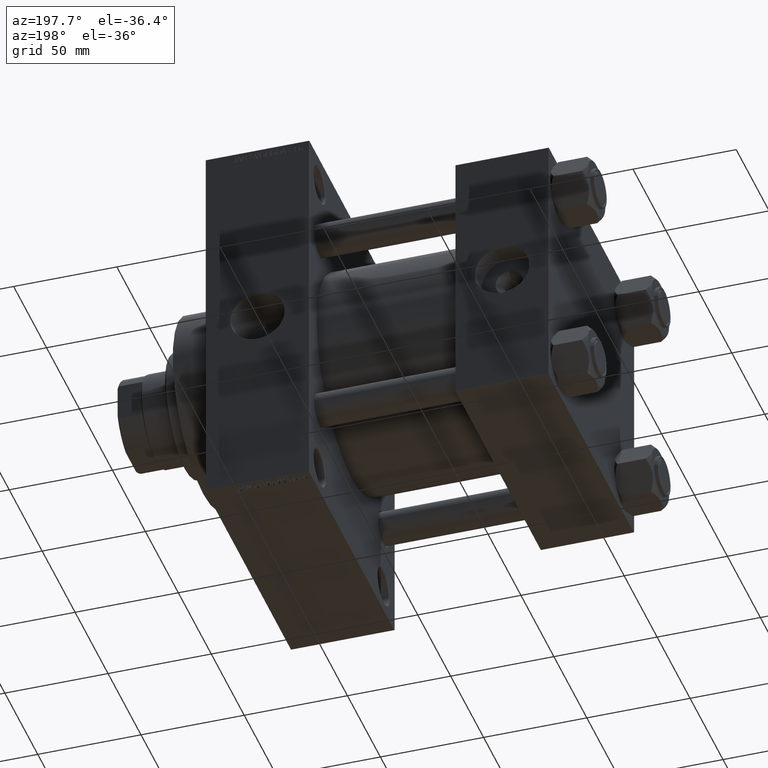
[diagram: clean part render]
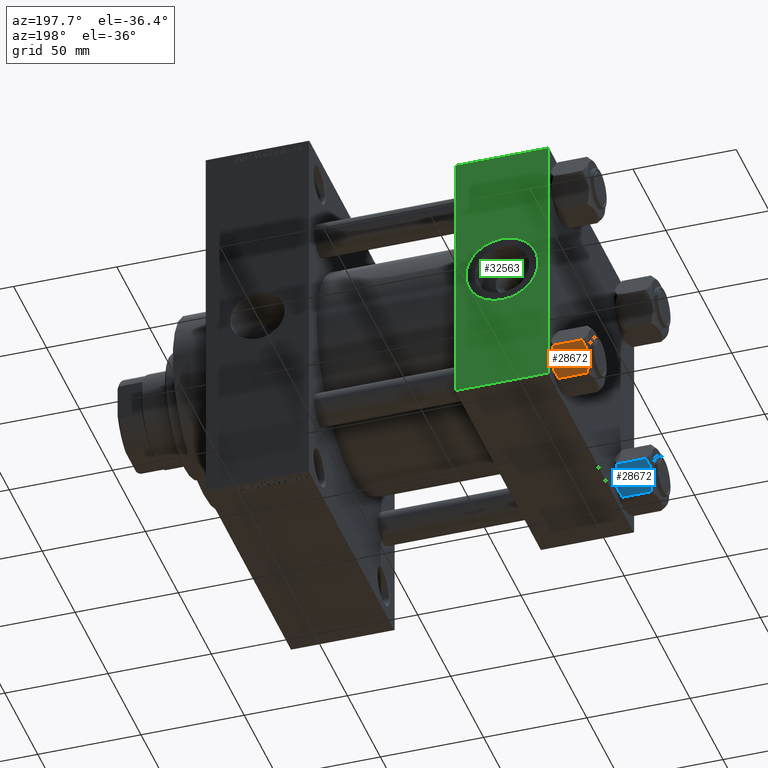
[diagram: same view with three faces highlighted in distinct colors, each labeled with its STEP entity id]
A machine part, auxiliary view with three faces highlighted in distinct colors.
Their STEP definitions:

[orange] entity #28672 — the highlighted planar face has unit normal (0, -0.866, 0.5).
#848 = ORIENTED_EDGE ( 'NONE', *, *, #49794, .F. ) ;
#1236 = EDGE_CURVE ( 'NONE', #22027, #23578, #36455, .T. ) ;
#1491 = CARTESIAN_POINT ( 'NONE',  ( -9.439480280627259745, -10.70497417113492311, -0.7317196846281081024 ) ) ;
#1660 = CARTESIAN_POINT ( 'NONE',  ( -7.809999999999999609, -13.52731680711293727, -18.00000000000000000 ) ) ;
#1671 = EDGE_CURVE ( 'NONE', #8282, #4310, #31316, .T. ) ;
#1756 = VERTEX_POINT ( 'NONE', #43913 ) ;
#2426 = CARTESIAN_POINT ( 'NONE',  ( -14.92760668674625002, -1.199260397376427090, -1.411989271640064825 ) ) ;
#3441 = CARTESIAN_POINT ( 'NONE',  ( -11.71500000000000874, -6.763658403556459753, -18.00000000000000000 ) ) ;
#4134 = CARTESIAN_POINT ( 'NONE',  ( -7.809999999999999609, -13.52731680711293727, -1.999999999999998224 ) ) ;
#4155 = DIRECTION ( 'NONE',  ( 0.4999999999999994449, -0.8660254037844390407, 0.000000000000000000 ) ) ;
#4188 = CARTESIAN_POINT ( 'NONE',  ( -10.06459418565412456, -9.622245127110602425, -17.61639331488794014 ) ) ;
#4310 = VERTEX_POINT ( 'NONE', #4772 ) ;
#4772 = CARTESIAN_POINT ( 'NONE',  ( -15.52647173767732980, -0.1619957022864788043, -2.000000000000000000 ) ) ;
#4846 = CARTESIAN_POINT ( 'NONE',  ( -7.809999999999999609, -13.52731680711293727, -16.00000000000000000 ) ) ;
#5135 = DIRECTION ( 'NONE',  ( 0.4999999999999994449, -0.8660254037844390407, 0.000000000000000000 ) ) ;
#5382 = CARTESIAN_POINT ( 'NONE',  ( -14.30591678195076533, -2.276058899034876681, -17.05261278537718894 ) ) ;
#5631 = CARTESIAN_POINT ( 'NONE',  ( -13.99051971937274530, -2.822342635977989289, -17.26828031537188934 ) ) ;
#5703 = CARTESIAN_POINT ( 'NONE',  ( -11.71500000000000874, -6.763658403556459753, 0.000000000000000000 ) ) ;
#5788 = DIRECTION ( 'NONE',  ( -0.4999999999999993894, 0.8660254037844389297, 0.000000000000000000 ) ) ;
#5951 = CARTESIAN_POINT ( 'NONE',  ( -14.31545111198821552, -2.259544954993873311, -0.9142282604026915616 ) ) ;
#6255 = ORIENTED_EDGE ( 'NONE', *, *, #1671, .F. ) ;
#6485 = DIRECTION ( 'NONE',  ( -0.4999999999999994449, 0.8660254037844390407, 0.000000000000000000 ) ) ;
#7713 = CARTESIAN_POINT ( 'NONE',  ( -11.04378428799595468, -7.926238119585997666, -17.94910618364700028 ) ) ;
#8277 = EDGE_CURVE ( 'NONE', #26955, #33557, #28159, .T. ) ;
#8282 = VERTEX_POINT ( 'NONE', #32291 ) ;
#8441 = CARTESIAN_POINT ( 'NONE',  ( -11.38181071908714692, -7.340759166634859945, -18.00000000000001421 ) ) ;
#8693 = VERTEX_POINT ( 'NONE', #19389 ) ;
#9031 = CARTESIAN_POINT ( 'NONE',  ( -11.05297796109637787, -7.910314210667872103, 9.086969458144130882E-15 ) ) ;
#9966 = CARTESIAN_POINT ( 'NONE',  ( -12.38621571200405391, -5.601078687526916511, -0.05089381635300645190 ) ) ;
#10110 = EDGE_CURVE ( 'NONE', #24591, #26955, #42234, .T. ) ;
#10743 = LINE ( 'NONE', #41481, #20843 ) ;
#10975 = VECTOR ( 'NONE', #4155, 999.9999999999998863 ) ;
#12924 = CARTESIAN_POINT ( 'NONE',  ( -15.61999999999999567, 8.023367828467702033E-15, -18.00000000000000000 ) ) ;
#13318 = B_SPLINE_CURVE_WITH_KNOTS ( 'NONE', 3,
 ( #40200, #2426, #5951, #44223, #36419, #9966, #17023, #5703 ),
 .UNSPECIFIED., .F., .F.,
 ( 4, 2, 2, 4 ),
 ( 4.472842641982724416E-07, 0.003945636373369324802, 0.005918230917921887824, 0.007890825462474451713 ),
 .UNSPECIFIED. ) ;
#14792 = CARTESIAN_POINT ( 'NONE',  ( -7.903528262322674358, -13.36532110482643354, -2.000000000000000000 ) ) ;
#15273 = CARTESIAN_POINT ( 'NONE',  ( -7.903528262322674358, -13.36532110482643354, -16.00000000000000000 ) ) ;
#15577 = CARTESIAN_POINT ( 'NONE',  ( -15.52647173767732980, -0.1619957022864788043, -16.00000000000000000 ) ) ;
#17023 = CARTESIAN_POINT ( 'NONE',  ( -12.04818928091285635, -6.186557640478051567, 9.103910117089220044E-15 ) ) ;
#18754 = LINE ( 'NONE', #12924, #39751 ) ;
#19389 = CARTESIAN_POINT ( 'NONE',  ( -15.61999999999999567, 8.023367828467702033E-15, -16.00000000000000000 ) ) ;
#20609 = CARTESIAN_POINT ( 'NONE',  ( -9.124083218049237942, -11.25125790807803838, -0.9473872146228101698 ) ) ;
#20667 = EDGE_CURVE ( 'NONE', #8693, #8282, #18754, .T. ) ;
#20843 = VECTOR ( 'NONE', #6485, 999.9999999999998863 ) ;
#21961 = ORIENTED_EDGE ( 'NONE', *, *, #34067, .F. ) ;
#22027 = VERTEX_POINT ( 'NONE', #22409 ) ;
#22409 = CARTESIAN_POINT ( 'NONE',  ( -11.71500000000000874, -6.763658403556459753, 0.000000000000000000 ) ) ;
#23578 = VERTEX_POINT ( 'NONE', #36993 ) ;
#24373 = CARTESIAN_POINT ( 'NONE',  ( -10.40215497533437805, -9.037572688741340343, -0.1971866459924474513 ) ) ;
#24591 = VERTEX_POINT ( 'NONE', #28607 ) ;
#25400 = PLANE ( 'NONE',  #45235 ) ;
#26955 = VERTEX_POINT ( 'NONE', #45933 ) ;
#27083 = CARTESIAN_POINT ( 'NONE',  ( -9.114548888011787753, -11.26777185211903820, -17.08577173959730899 ) ) ;
#27885 = VECTOR ( 'NONE', #43959, 1000.000000000000000 ) ;
#28159 = B_SPLINE_CURVE_WITH_KNOTS ( 'NONE', 3,
 ( #42180, #47416, #48159, #5631, #5382, #32546, #39623, #47658 ),
 .UNSPECIFIED., .F., .F.,
 ( 4, 2, 2, 4 ),
 ( 0.007890825462474436100, 0.01181022244528555712, 0.01376992093669111850, 0.01572961942809667987 ),
 .UNSPECIFIED. ) ;
#28607 = CARTESIAN_POINT ( 'NONE',  ( -7.903528262322674358, -13.36532110482643354, -16.00000000000000000 ) ) ;
#28672 = ADVANCED_FACE ( 'NONE', ( #40286 ), #25400, .F. ) ;
#28926 = DIRECTION ( 'NONE',  ( 0.8660254037844390407, 0.4999999999999994449, 0.000000000000000000 ) ) ;
#28927 = ORIENTED_EDGE ( 'NONE', *, *, #20667, .F. ) ;
#30905 = VECTOR ( 'NONE', #47871, 999.9999999999998863 ) ;
#31316 = LINE ( 'NONE', #39132, #10975 ) ;
#32291 = CARTESIAN_POINT ( 'NONE',  ( -15.61999999999999567, 8.023367828467702033E-15, -1.999999999999998224 ) ) ;
#32546 = CARTESIAN_POINT ( 'NONE',  ( -14.92394044919338825, -1.205610507090610461, -16.56553707812500065 ) ) ;
#32957 = CARTESIAN_POINT ( 'NONE',  ( -7.809999999999999609, -13.52731680711293727, -18.00000000000000000 ) ) ;
#33257 = VECTOR ( 'NONE', #5135, 999.9999999999998863 ) ;
#33557 = VERTEX_POINT ( 'NONE', #15577 ) ;
#33848 = ORIENTED_EDGE ( 'NONE', *, *, #8277, .F. ) ;
#34067 = EDGE_CURVE ( 'NONE', #33557, #8693, #47622, .T. ) ;
#34421 = CARTESIAN_POINT ( 'NONE',  ( -7.809999999999999609, -13.52731680711293727, -1.999999999999998224 ) ) ;
#34669 = LINE ( 'NONE', #34421, #33257 ) ;
#35143 = CARTESIAN_POINT ( 'NONE',  ( -8.502393313253753249, -12.32805640973648664, -16.58801072835993651 ) ) ;
#35983 = CARTESIAN_POINT ( 'NONE',  ( -8.506059550806618574, -12.32170630002230816, -1.434462921875002461 ) ) ;
#36419 = CARTESIAN_POINT ( 'NONE',  ( -13.04337073483128329, -4.462852799541069615, -0.2430846701012900901 ) ) ;
#36455 = B_SPLINE_CURVE_WITH_KNOTS ( 'NONE', 3,
 ( #43535, #9031, #24373, #1491, #20609, #35983, #41505, #14792 ),
 .UNSPECIFIED., .F., .F.,
 ( 4, 2, 2, 4 ),
 ( 0.007890825462474451713, 0.01181022244528557794, 0.01376992093669113758, 0.01572961942809669722 ),
 .UNSPECIFIED. ) ;
#36993 = CARTESIAN_POINT ( 'NONE',  ( -7.903528262322674358, -13.36532110482643354, -2.000000000000000000 ) ) ;
#38384 = EDGE_CURVE ( 'NONE', #1756, #43653, #47712, .T. ) ;
#39132 = CARTESIAN_POINT ( 'NONE',  ( -7.809999999999999609, -13.52731680711293727, -1.999999999999998224 ) ) ;
#39623 = CARTESIAN_POINT ( 'NONE',  ( -15.22736220980736199, -0.6800686015852018818, -16.29368822085855584 ) ) ;
#39751 = VECTOR ( 'NONE', #47424, 1000.000000000000000 ) ;
#40200 = CARTESIAN_POINT ( 'NONE',  ( -15.52647173767732980, -0.1619957022864788043, -2.000000000000000000 ) ) ;
#40286 = FACE_OUTER_BOUND ( 'NONE', #49705, .T. ) ;
#40333 = ORIENTED_EDGE ( 'NONE', *, *, #10110, .F. ) ;
#41481 = CARTESIAN_POINT ( 'NONE',  ( -7.809999999999999609, -13.52731680711293727, -16.00000000000000000 ) ) ;
#41505 = CARTESIAN_POINT ( 'NONE',  ( -8.202637790192643052, -12.84724820552771085, -1.706311779141444829 ) ) ;
#41559 = EDGE_CURVE ( 'NONE', #4310, #22027, #13318, .T. ) ;
#42180 = CARTESIAN_POINT ( 'NONE',  ( -11.71500000000000874, -6.763658403556459753, -18.00000000000000000 ) ) ;
#42234 = B_SPLINE_CURVE_WITH_KNOTS ( 'NONE', 3,
 ( #15273, #35143, #27083, #4188, #42953, #7713, #8441, #3441 ),
 .UNSPECIFIED., .F., .F.,
 ( 4, 2, 2, 4 ),
 ( 4.472842641813524291E-07, 0.003945636373369312659, 0.005918230917921874813, 0.007890825462474436100 ),
 .UNSPECIFIED. ) ;
#42953 = CARTESIAN_POINT ( 'NONE',  ( -10.38662926516872353, -9.064464007571846338, -17.75691532989871746 ) ) ;
#43535 = CARTESIAN_POINT ( 'NONE',  ( -11.71500000000000874, -6.763658403556459753, 0.000000000000000000 ) ) ;
#43653 = VERTEX_POINT ( 'NONE', #4134 ) ;
#43913 = CARTESIAN_POINT ( 'NONE',  ( -7.809999999999999609, -13.52731680711293727, -16.00000000000000000 ) ) ;
#43959 = DIRECTION ( 'NONE',  ( -0.000000000000000000, -0.000000000000000000, 1.000000000000000000 ) ) ;
#44223 = CARTESIAN_POINT ( 'NONE',  ( -13.36540581434588226, -3.905071680002305534, -0.3836066851120543686 ) ) ;
#44884 = ORIENTED_EDGE ( 'NONE', *, *, #48018, .F. ) ;
#45235 = AXIS2_PLACEMENT_3D ( 'NONE', #32957, #28926, #5788 ) ;
#45933 = CARTESIAN_POINT ( 'NONE',  ( -11.71500000000000874, -6.763658403556459753, -18.00000000000000000 ) ) ;
#46674 = ORIENTED_EDGE ( 'NONE', *, *, #38384, .T. ) ;
#47416 = CARTESIAN_POINT ( 'NONE',  ( -12.37702203890362540, -5.617002596445037632, -18.00000000000000711 ) ) ;
#47424 = DIRECTION ( 'NONE',  ( -0.000000000000000000, -0.000000000000000000, 1.000000000000000000 ) ) ;
#47622 = LINE ( 'NONE', #4846, #30905 ) ;
#47658 = CARTESIAN_POINT ( 'NONE',  ( -15.52647173767732980, -0.1619957022864788043, -16.00000000000000000 ) ) ;
#47712 = LINE ( 'NONE', #1660, #27885 ) ;
#47871 = DIRECTION ( 'NONE',  ( -0.4999999999999994449, 0.8660254037844390407, 0.000000000000000000 ) ) ;
#48018 = EDGE_CURVE ( 'NONE', #1756, #24591, #10743, .T. ) ;
#48159 = CARTESIAN_POINT ( 'NONE',  ( -13.02784502466562699, -4.489744118371570281, -17.80281335400755083 ) ) ;
#48719 = ORIENTED_EDGE ( 'NONE', *, *, #1236, .F. ) ;
#49699 = ORIENTED_EDGE ( 'NONE', *, *, #41559, .F. ) ;
#49705 = EDGE_LOOP ( 'NONE', ( #44884, #46674, #848, #48719, #49699, #6255, #28927, #21961, #33848, #40333 ) ) ;
#49794 = EDGE_CURVE ( 'NONE', #23578, #43653, #34669, .T. ) ;

[blue] entity #28672 — the highlighted planar face has unit normal (0, -0.866, 0.5).
#848 = ORIENTED_EDGE ( 'NONE', *, *, #49794, .F. ) ;
#1236 = EDGE_CURVE ( 'NONE', #22027, #23578, #36455, .T. ) ;
#1491 = CARTESIAN_POINT ( 'NONE',  ( -9.439480280627259745, -10.70497417113492311, -0.7317196846281081024 ) ) ;
#1660 = CARTESIAN_POINT ( 'NONE',  ( -7.809999999999999609, -13.52731680711293727, -18.00000000000000000 ) ) ;
#1671 = EDGE_CURVE ( 'NONE', #8282, #4310, #31316, .T. ) ;
#1756 = VERTEX_POINT ( 'NONE', #43913 ) ;
#2426 = CARTESIAN_POINT ( 'NONE',  ( -14.92760668674625002, -1.199260397376427090, -1.411989271640064825 ) ) ;
#3441 = CARTESIAN_POINT ( 'NONE',  ( -11.71500000000000874, -6.763658403556459753, -18.00000000000000000 ) ) ;
#4134 = CARTESIAN_POINT ( 'NONE',  ( -7.809999999999999609, -13.52731680711293727, -1.999999999999998224 ) ) ;
#4155 = DIRECTION ( 'NONE',  ( 0.4999999999999994449, -0.8660254037844390407, 0.000000000000000000 ) ) ;
#4188 = CARTESIAN_POINT ( 'NONE',  ( -10.06459418565412456, -9.622245127110602425, -17.61639331488794014 ) ) ;
#4310 = VERTEX_POINT ( 'NONE', #4772 ) ;
#4772 = CARTESIAN_POINT ( 'NONE',  ( -15.52647173767732980, -0.1619957022864788043, -2.000000000000000000 ) ) ;
#4846 = CARTESIAN_POINT ( 'NONE',  ( -7.809999999999999609, -13.52731680711293727, -16.00000000000000000 ) ) ;
#5135 = DIRECTION ( 'NONE',  ( 0.4999999999999994449, -0.8660254037844390407, 0.000000000000000000 ) ) ;
#5382 = CARTESIAN_POINT ( 'NONE',  ( -14.30591678195076533, -2.276058899034876681, -17.05261278537718894 ) ) ;
#5631 = CARTESIAN_POINT ( 'NONE',  ( -13.99051971937274530, -2.822342635977989289, -17.26828031537188934 ) ) ;
#5703 = CARTESIAN_POINT ( 'NONE',  ( -11.71500000000000874, -6.763658403556459753, 0.000000000000000000 ) ) ;
#5788 = DIRECTION ( 'NONE',  ( -0.4999999999999993894, 0.8660254037844389297, 0.000000000000000000 ) ) ;
#5951 = CARTESIAN_POINT ( 'NONE',  ( -14.31545111198821552, -2.259544954993873311, -0.9142282604026915616 ) ) ;
#6255 = ORIENTED_EDGE ( 'NONE', *, *, #1671, .F. ) ;
#6485 = DIRECTION ( 'NONE',  ( -0.4999999999999994449, 0.8660254037844390407, 0.000000000000000000 ) ) ;
#7713 = CARTESIAN_POINT ( 'NONE',  ( -11.04378428799595468, -7.926238119585997666, -17.94910618364700028 ) ) ;
#8277 = EDGE_CURVE ( 'NONE', #26955, #33557, #28159, .T. ) ;
#8282 = VERTEX_POINT ( 'NONE', #32291 ) ;
#8441 = CARTESIAN_POINT ( 'NONE',  ( -11.38181071908714692, -7.340759166634859945, -18.00000000000001421 ) ) ;
#8693 = VERTEX_POINT ( 'NONE', #19389 ) ;
#9031 = CARTESIAN_POINT ( 'NONE',  ( -11.05297796109637787, -7.910314210667872103, 9.086969458144130882E-15 ) ) ;
#9966 = CARTESIAN_POINT ( 'NONE',  ( -12.38621571200405391, -5.601078687526916511, -0.05089381635300645190 ) ) ;
#10110 = EDGE_CURVE ( 'NONE', #24591, #26955, #42234, .T. ) ;
#10743 = LINE ( 'NONE', #41481, #20843 ) ;
#10975 = VECTOR ( 'NONE', #4155, 999.9999999999998863 ) ;
#12924 = CARTESIAN_POINT ( 'NONE',  ( -15.61999999999999567, 8.023367828467702033E-15, -18.00000000000000000 ) ) ;
#13318 = B_SPLINE_CURVE_WITH_KNOTS ( 'NONE', 3,
 ( #40200, #2426, #5951, #44223, #36419, #9966, #17023, #5703 ),
 .UNSPECIFIED., .F., .F.,
 ( 4, 2, 2, 4 ),
 ( 4.472842641982724416E-07, 0.003945636373369324802, 0.005918230917921887824, 0.007890825462474451713 ),
 .UNSPECIFIED. ) ;
#14792 = CARTESIAN_POINT ( 'NONE',  ( -7.903528262322674358, -13.36532110482643354, -2.000000000000000000 ) ) ;
#15273 = CARTESIAN_POINT ( 'NONE',  ( -7.903528262322674358, -13.36532110482643354, -16.00000000000000000 ) ) ;
#15577 = CARTESIAN_POINT ( 'NONE',  ( -15.52647173767732980, -0.1619957022864788043, -16.00000000000000000 ) ) ;
#17023 = CARTESIAN_POINT ( 'NONE',  ( -12.04818928091285635, -6.186557640478051567, 9.103910117089220044E-15 ) ) ;
#18754 = LINE ( 'NONE', #12924, #39751 ) ;
#19389 = CARTESIAN_POINT ( 'NONE',  ( -15.61999999999999567, 8.023367828467702033E-15, -16.00000000000000000 ) ) ;
#20609 = CARTESIAN_POINT ( 'NONE',  ( -9.124083218049237942, -11.25125790807803838, -0.9473872146228101698 ) ) ;
#20667 = EDGE_CURVE ( 'NONE', #8693, #8282, #18754, .T. ) ;
#20843 = VECTOR ( 'NONE', #6485, 999.9999999999998863 ) ;
#21961 = ORIENTED_EDGE ( 'NONE', *, *, #34067, .F. ) ;
#22027 = VERTEX_POINT ( 'NONE', #22409 ) ;
#22409 = CARTESIAN_POINT ( 'NONE',  ( -11.71500000000000874, -6.763658403556459753, 0.000000000000000000 ) ) ;
#23578 = VERTEX_POINT ( 'NONE', #36993 ) ;
#24373 = CARTESIAN_POINT ( 'NONE',  ( -10.40215497533437805, -9.037572688741340343, -0.1971866459924474513 ) ) ;
#24591 = VERTEX_POINT ( 'NONE', #28607 ) ;
#25400 = PLANE ( 'NONE',  #45235 ) ;
#26955 = VERTEX_POINT ( 'NONE', #45933 ) ;
#27083 = CARTESIAN_POINT ( 'NONE',  ( -9.114548888011787753, -11.26777185211903820, -17.08577173959730899 ) ) ;
#27885 = VECTOR ( 'NONE', #43959, 1000.000000000000000 ) ;
#28159 = B_SPLINE_CURVE_WITH_KNOTS ( 'NONE', 3,
 ( #42180, #47416, #48159, #5631, #5382, #32546, #39623, #47658 ),
 .UNSPECIFIED., .F., .F.,
 ( 4, 2, 2, 4 ),
 ( 0.007890825462474436100, 0.01181022244528555712, 0.01376992093669111850, 0.01572961942809667987 ),
 .UNSPECIFIED. ) ;
#28607 = CARTESIAN_POINT ( 'NONE',  ( -7.903528262322674358, -13.36532110482643354, -16.00000000000000000 ) ) ;
#28672 = ADVANCED_FACE ( 'NONE', ( #40286 ), #25400, .F. ) ;
#28926 = DIRECTION ( 'NONE',  ( 0.8660254037844390407, 0.4999999999999994449, 0.000000000000000000 ) ) ;
#28927 = ORIENTED_EDGE ( 'NONE', *, *, #20667, .F. ) ;
#30905 = VECTOR ( 'NONE', #47871, 999.9999999999998863 ) ;
#31316 = LINE ( 'NONE', #39132, #10975 ) ;
#32291 = CARTESIAN_POINT ( 'NONE',  ( -15.61999999999999567, 8.023367828467702033E-15, -1.999999999999998224 ) ) ;
#32546 = CARTESIAN_POINT ( 'NONE',  ( -14.92394044919338825, -1.205610507090610461, -16.56553707812500065 ) ) ;
#32957 = CARTESIAN_POINT ( 'NONE',  ( -7.809999999999999609, -13.52731680711293727, -18.00000000000000000 ) ) ;
#33257 = VECTOR ( 'NONE', #5135, 999.9999999999998863 ) ;
#33557 = VERTEX_POINT ( 'NONE', #15577 ) ;
#33848 = ORIENTED_EDGE ( 'NONE', *, *, #8277, .F. ) ;
#34067 = EDGE_CURVE ( 'NONE', #33557, #8693, #47622, .T. ) ;
#34421 = CARTESIAN_POINT ( 'NONE',  ( -7.809999999999999609, -13.52731680711293727, -1.999999999999998224 ) ) ;
#34669 = LINE ( 'NONE', #34421, #33257 ) ;
#35143 = CARTESIAN_POINT ( 'NONE',  ( -8.502393313253753249, -12.32805640973648664, -16.58801072835993651 ) ) ;
#35983 = CARTESIAN_POINT ( 'NONE',  ( -8.506059550806618574, -12.32170630002230816, -1.434462921875002461 ) ) ;
#36419 = CARTESIAN_POINT ( 'NONE',  ( -13.04337073483128329, -4.462852799541069615, -0.2430846701012900901 ) ) ;
#36455 = B_SPLINE_CURVE_WITH_KNOTS ( 'NONE', 3,
 ( #43535, #9031, #24373, #1491, #20609, #35983, #41505, #14792 ),
 .UNSPECIFIED., .F., .F.,
 ( 4, 2, 2, 4 ),
 ( 0.007890825462474451713, 0.01181022244528557794, 0.01376992093669113758, 0.01572961942809669722 ),
 .UNSPECIFIED. ) ;
#36993 = CARTESIAN_POINT ( 'NONE',  ( -7.903528262322674358, -13.36532110482643354, -2.000000000000000000 ) ) ;
#38384 = EDGE_CURVE ( 'NONE', #1756, #43653, #47712, .T. ) ;
#39132 = CARTESIAN_POINT ( 'NONE',  ( -7.809999999999999609, -13.52731680711293727, -1.999999999999998224 ) ) ;
#39623 = CARTESIAN_POINT ( 'NONE',  ( -15.22736220980736199, -0.6800686015852018818, -16.29368822085855584 ) ) ;
#39751 = VECTOR ( 'NONE', #47424, 1000.000000000000000 ) ;
#40200 = CARTESIAN_POINT ( 'NONE',  ( -15.52647173767732980, -0.1619957022864788043, -2.000000000000000000 ) ) ;
#40286 = FACE_OUTER_BOUND ( 'NONE', #49705, .T. ) ;
#40333 = ORIENTED_EDGE ( 'NONE', *, *, #10110, .F. ) ;
#41481 = CARTESIAN_POINT ( 'NONE',  ( -7.809999999999999609, -13.52731680711293727, -16.00000000000000000 ) ) ;
#41505 = CARTESIAN_POINT ( 'NONE',  ( -8.202637790192643052, -12.84724820552771085, -1.706311779141444829 ) ) ;
#41559 = EDGE_CURVE ( 'NONE', #4310, #22027, #13318, .T. ) ;
#42180 = CARTESIAN_POINT ( 'NONE',  ( -11.71500000000000874, -6.763658403556459753, -18.00000000000000000 ) ) ;
#42234 = B_SPLINE_CURVE_WITH_KNOTS ( 'NONE', 3,
 ( #15273, #35143, #27083, #4188, #42953, #7713, #8441, #3441 ),
 .UNSPECIFIED., .F., .F.,
 ( 4, 2, 2, 4 ),
 ( 4.472842641813524291E-07, 0.003945636373369312659, 0.005918230917921874813, 0.007890825462474436100 ),
 .UNSPECIFIED. ) ;
#42953 = CARTESIAN_POINT ( 'NONE',  ( -10.38662926516872353, -9.064464007571846338, -17.75691532989871746 ) ) ;
#43535 = CARTESIAN_POINT ( 'NONE',  ( -11.71500000000000874, -6.763658403556459753, 0.000000000000000000 ) ) ;
#43653 = VERTEX_POINT ( 'NONE', #4134 ) ;
#43913 = CARTESIAN_POINT ( 'NONE',  ( -7.809999999999999609, -13.52731680711293727, -16.00000000000000000 ) ) ;
#43959 = DIRECTION ( 'NONE',  ( -0.000000000000000000, -0.000000000000000000, 1.000000000000000000 ) ) ;
#44223 = CARTESIAN_POINT ( 'NONE',  ( -13.36540581434588226, -3.905071680002305534, -0.3836066851120543686 ) ) ;
#44884 = ORIENTED_EDGE ( 'NONE', *, *, #48018, .F. ) ;
#45235 = AXIS2_PLACEMENT_3D ( 'NONE', #32957, #28926, #5788 ) ;
#45933 = CARTESIAN_POINT ( 'NONE',  ( -11.71500000000000874, -6.763658403556459753, -18.00000000000000000 ) ) ;
#46674 = ORIENTED_EDGE ( 'NONE', *, *, #38384, .T. ) ;
#47416 = CARTESIAN_POINT ( 'NONE',  ( -12.37702203890362540, -5.617002596445037632, -18.00000000000000711 ) ) ;
#47424 = DIRECTION ( 'NONE',  ( -0.000000000000000000, -0.000000000000000000, 1.000000000000000000 ) ) ;
#47622 = LINE ( 'NONE', #4846, #30905 ) ;
#47658 = CARTESIAN_POINT ( 'NONE',  ( -15.52647173767732980, -0.1619957022864788043, -16.00000000000000000 ) ) ;
#47712 = LINE ( 'NONE', #1660, #27885 ) ;
#47871 = DIRECTION ( 'NONE',  ( -0.4999999999999994449, 0.8660254037844390407, 0.000000000000000000 ) ) ;
#48018 = EDGE_CURVE ( 'NONE', #1756, #24591, #10743, .T. ) ;
#48159 = CARTESIAN_POINT ( 'NONE',  ( -13.02784502466562699, -4.489744118371570281, -17.80281335400755083 ) ) ;
#48719 = ORIENTED_EDGE ( 'NONE', *, *, #1236, .F. ) ;
#49699 = ORIENTED_EDGE ( 'NONE', *, *, #41559, .F. ) ;
#49705 = EDGE_LOOP ( 'NONE', ( #44884, #46674, #848, #48719, #49699, #6255, #28927, #21961, #33848, #40333 ) ) ;
#49794 = EDGE_CURVE ( 'NONE', #23578, #43653, #34669, .T. ) ;

[green] entity #32563 — the highlighted planar face has unit normal (0, 1, 0).
#911 = ORIENTED_EDGE ( 'NONE', *, *, #36731, .T. ) ;
#1625 = DIRECTION ( 'NONE',  ( 0.000000000000000000, 0.000000000000000000, 1.000000000000000000 ) ) ;
#2501 = EDGE_CURVE ( 'NONE', #7402, #47976, #23795, .T. ) ;
#2587 = VERTEX_POINT ( 'NONE', #12693 ) ;
#2623 = LINE ( 'NONE', #41644, #17370 ) ;
#3887 = DIRECTION ( 'NONE',  ( 0.000000000000000000, 1.000000000000000000, 0.000000000000000000 ) ) ;
#4373 = CARTESIAN_POINT ( 'NONE',  ( 22.50000000000000000, 65.00000000000000000, 0.000000000000000000 ) ) ;
#6455 = CIRCLE ( 'NONE', #34590, 17.50000000000000000 ) ;
#7402 = VERTEX_POINT ( 'NONE', #23924 ) ;
#10609 = EDGE_CURVE ( 'NONE', #47976, #7402, #6455, .T. ) ;
#12693 = CARTESIAN_POINT ( 'NONE',  ( 45.00000000000000000, 65.00000000000000000, -64.49999999999995737 ) ) ;
#15018 = CARTESIAN_POINT ( 'NONE',  ( 0.000000000000000000, 65.00000000000000000, 64.49999999999998579 ) ) ;
#16000 = ORIENTED_EDGE ( 'NONE', *, *, #10609, .F. ) ;
#17370 = VECTOR ( 'NONE', #41389, 1000.000000000000000 ) ;
#17458 = VERTEX_POINT ( 'NONE', #40460 ) ;
#18777 = CARTESIAN_POINT ( 'NONE',  ( 45.00000000000000000, 65.00000000000000000, 65.00000000000001421 ) ) ;
#20631 = DIRECTION ( 'NONE',  ( 0.000000000000000000, 0.000000000000000000, -1.000000000000000000 ) ) ;
#21377 = CARTESIAN_POINT ( 'NONE',  ( 45.00000000000000000, 65.00000000000000000, 65.00000000000001421 ) ) ;
#22796 = FACE_BOUND ( 'NONE', #46740, .T. ) ;
#23795 = CIRCLE ( 'NONE', #30232, 17.50000000000000000 ) ;
#23924 = CARTESIAN_POINT ( 'NONE',  ( 22.50000000000000000, 65.00000000000000000, 17.50000000000000000 ) ) ;
#24357 = EDGE_CURVE ( 'NONE', #17458, #2587, #43809, .T. ) ;
#25147 = PLANE ( 'NONE',  #40530 ) ;
#25876 = VECTOR ( 'NONE', #44331, 1000.000000000000000 ) ;
#27247 = EDGE_CURVE ( 'NONE', #35833, #28898, #40808, .T. ) ;
#28898 = VERTEX_POINT ( 'NONE', #36442 ) ;
#28951 = CARTESIAN_POINT ( 'NONE',  ( 0.000000000000000000, 65.00000000000000000, 65.00000000000001421 ) ) ;
#30100 = FACE_OUTER_BOUND ( 'NONE', #31345, .T. ) ;
#30232 = AXIS2_PLACEMENT_3D ( 'NONE', #36118, #47932, #1625 ) ;
#30268 = LINE ( 'NONE', #45645, #47149 ) ;
#30552 = DIRECTION ( 'NONE',  ( 0.000000000000000000, 0.000000000000000000, 1.000000000000000000 ) ) ;
#30688 = ORIENTED_EDGE ( 'NONE', *, *, #24357, .T. ) ;
#31345 = EDGE_LOOP ( 'NONE', ( #30688, #911, #48095, #45502 ) ) ;
#32563 = ADVANCED_FACE ( 'NONE', ( #22796, #30100 ), #25147, .T. ) ;
#33649 = CARTESIAN_POINT ( 'NONE',  ( 22.50000000000000355, 65.00000000000000000, -17.50000000000000000 ) ) ;
#34590 = AXIS2_PLACEMENT_3D ( 'NONE', #4373, #3887, #30552 ) ;
#35833 = VERTEX_POINT ( 'NONE', #15018 ) ;
#36118 = CARTESIAN_POINT ( 'NONE',  ( 22.50000000000000000, 65.00000000000000000, 0.000000000000000000 ) ) ;
#36442 = CARTESIAN_POINT ( 'NONE',  ( 0.000000000000000000, 65.00000000000000000, -64.49999999999995737 ) ) ;
#36731 = EDGE_CURVE ( 'NONE', #2587, #28898, #2623, .T. ) ;
#40460 = CARTESIAN_POINT ( 'NONE',  ( 45.00000000000000000, 65.00000000000000000, 64.49999999999998579 ) ) ;
#40530 = AXIS2_PLACEMENT_3D ( 'NONE', #18777, #41461, #40534 ) ;
#40534 = DIRECTION ( 'NONE',  ( 0.000000000000000000, -0.000000000000000000, 1.000000000000000000 ) ) ;
#40808 = LINE ( 'NONE', #28951, #25876 ) ;
#41389 = DIRECTION ( 'NONE',  ( -1.000000000000000000, 0.000000000000000000, 0.000000000000000000 ) ) ;
#41461 = DIRECTION ( 'NONE',  ( -0.000000000000000000, 1.000000000000000000, 0.000000000000000000 ) ) ;
#41644 = CARTESIAN_POINT ( 'NONE',  ( 45.00000000000000000, 65.00000000000000000, -64.49999999999995737 ) ) ;
#41956 = EDGE_CURVE ( 'NONE', #35833, #17458, #30268, .T. ) ;
#43809 = LINE ( 'NONE', #21377, #45998 ) ;
#44331 = DIRECTION ( 'NONE',  ( 0.000000000000000000, 0.000000000000000000, -1.000000000000000000 ) ) ;
#45392 = DIRECTION ( 'NONE',  ( 1.000000000000000000, 0.000000000000000000, 0.000000000000000000 ) ) ;
#45502 = ORIENTED_EDGE ( 'NONE', *, *, #41956, .T. ) ;
#45645 = CARTESIAN_POINT ( 'NONE',  ( 45.00000000000000000, 65.00000000000000000, 64.49999999999998579 ) ) ;
#45998 = VECTOR ( 'NONE', #20631, 1000.000000000000000 ) ;
#46740 = EDGE_LOOP ( 'NONE', ( #47005, #16000 ) ) ;
#47005 = ORIENTED_EDGE ( 'NONE', *, *, #2501, .F. ) ;
#47149 = VECTOR ( 'NONE', #45392, 1000.000000000000000 ) ;
#47932 = DIRECTION ( 'NONE',  ( 0.000000000000000000, 1.000000000000000000, 0.000000000000000000 ) ) ;
#47976 = VERTEX_POINT ( 'NONE', #33649 ) ;
#48095 = ORIENTED_EDGE ( 'NONE', *, *, #27247, .F. ) ;